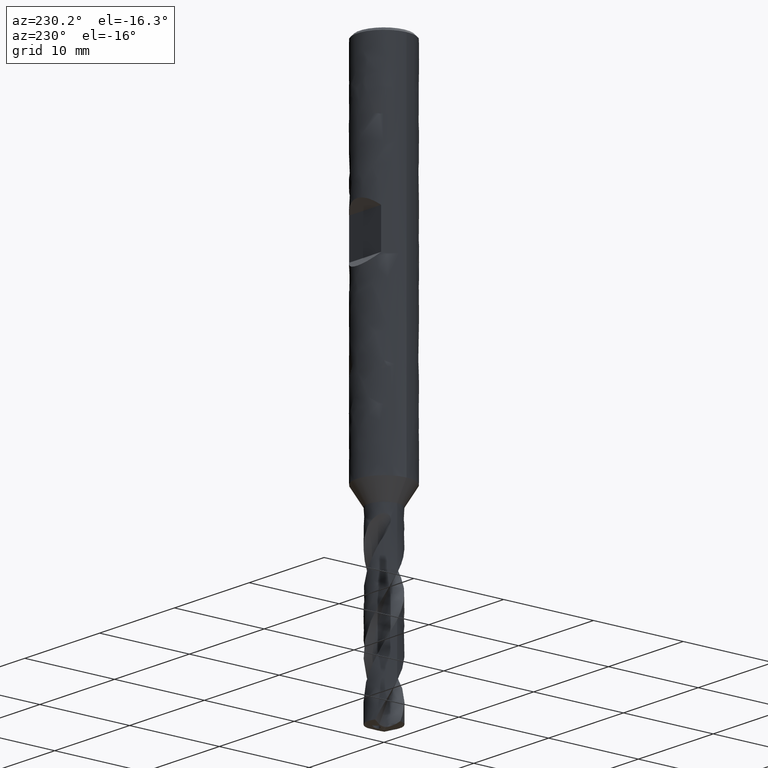
[diagram: clean part render]
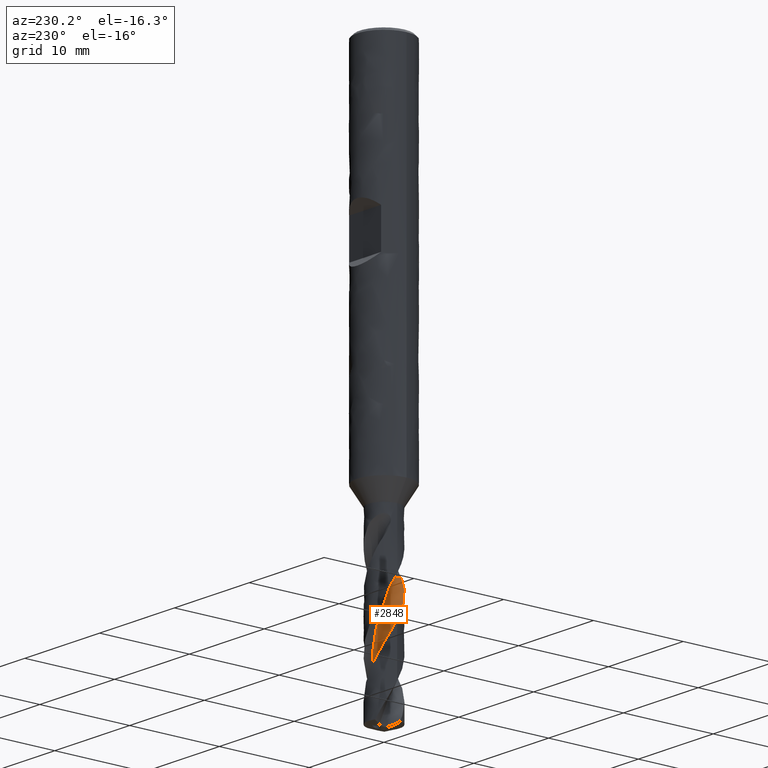
[diagram: same view with one face highlighted and labeled with its STEP entity id]
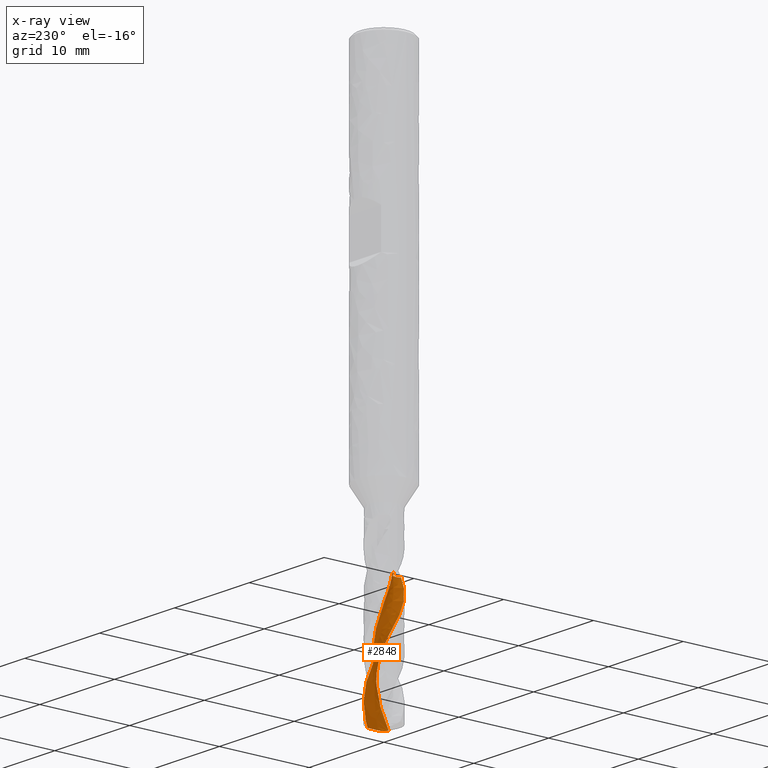
[diagram: x-ray of the same camera — body ghosted, the highlighted face saturated]
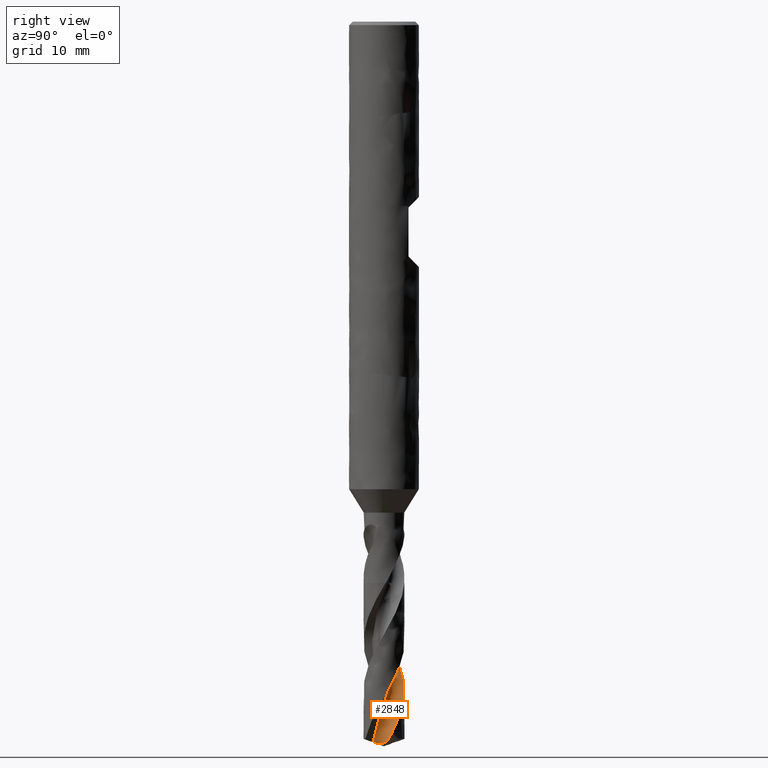
[diagram: same view with one face highlighted and labeled with its STEP entity id]
A machine part, auxiliary view. The second image highlights one B-rep face of the part: STEP entity #2848.
The next image is the same camera in x-ray: the body ghosted, the highlighted face saturated — about 0% of this face is hidden behind the body in this view.
A second angle (right view) of the same face is appended — the face is thin or edge-on in the first view.
In plain terms, the highlighted face is a freeform B-spline surface patch.
Its self-contained STEP definition (entity closure, byte-faithful):
#1710 = VERTEX_POINT('', #1711);
#1711 = CARTESIAN_POINT('', (-1.02463457413671, -0.229073927683657, -48.));
#1717 = EDGE_CURVE('', #1710, #1718, #1720, .T.);
#1718 = VERTEX_POINT('', #1719);
#1719 = CARTESIAN_POINT('', (-0.209315928972216, -1.73743685676138, -48.));
#1720 = B_SPLINE_CURVE_WITH_KNOTS('', 3, (#1721, #1722, #1723, #1724, #1725, #1726, #1727, #1728, #1729, #1730, #1731, #1732, #1733, #1734, #1735, #1736, #1737, #1738, #1739, #1740, #1741, #1742, #1743, #1744, #1745, #1746, #1747, #1748, #1749, #1750, #1751, #1752, #1753, #1754, #1755, #1756, #1757, #1758, #1759, #1760, #1761, #1762, #1763, #1764, #1765, #1766, #1767, #1768, #1769, #1770, #1771, #1772), .UNSPECIFIED., .F., .U., (4, 3, 3, 3, 3, 3, 3, 3, 3, 3, 3, 3, 3, 3, 3, 3, 3, 4), (0., 0.13238223961538, 0.264489129459112, 0.396329541998018, 0.527909895141712, 0.659234382537287, 0.790305122709238, 0.921122238344768, 1.00833954413342, 1.04734196641181, 1.17964447026306, 1.31167442705309, 1.44343997904716, 1.57494688894051, 1.70619874545669, 1.83719709162444, 1.96794148542349, 2.00282853897093), .UNSPECIFIED.);
#1721 = CARTESIAN_POINT('', (-1.02463457413671, -0.229073927683655, -48.));
#1722 = CARTESIAN_POINT('', (-0.980840436519577, -0.234487069705403, -48.));
#1723 = CARTESIAN_POINT('', (-0.937301769085219, -0.24267663320288, -48.));
#1724 = CARTESIAN_POINT('', (-0.894533881379576, -0.253545689158824, -48.));
#1725 = CARTESIAN_POINT('', (-0.851854949172402, -0.264392137912441, -48.));
#1726 = CARTESIAN_POINT('', (-0.809775730986182, -0.277949557964906, -48.));
#1727 = CARTESIAN_POINT('', (-0.76879219925814, -0.29405815293796, -48.));
#1728 = CARTESIAN_POINT('', (-0.727891336807151, -0.310134254715708, -48.));
#1729 = CARTESIAN_POINT('', (-0.687921521844684, -0.328814178372795, -48.));
#1730 = CARTESIAN_POINT('', (-0.649351970942264, -0.349878635184896, -48.));
#1731 = CARTESIAN_POINT('', (-0.61085849970228, -0.37090154168785, -48.));
#1732 = CARTESIAN_POINT('', (-0.573609571840415, -0.394381566705054, -48.));
#1733 = CARTESIAN_POINT('', (-0.538040744348666, -0.420044154976654, -48.));
#1734 = CARTESIAN_POINT('', (-0.502541082537343, -0.445656840833571, -48.));
#1735 = CARTESIAN_POINT('', (-0.468577006149005, -0.473543115206731, -48.));
#1736 = CARTESIAN_POINT('', (-0.43654412338344, -0.5033781631747, -48.));
#1737 = CARTESIAN_POINT('', (-0.404573135053769, -0.533155563397463, -48.));
#1738 = CARTESIAN_POINT('', (-0.374402086367705, -0.564989461779883, -48.));
#1739 = CARTESIAN_POINT('', (-0.346381052114439, -0.598510489481609, -48.));
#1740 = CARTESIAN_POINT('', (-0.31841423912988, -0.631966653315929, -48.));
#1741 = CARTESIAN_POINT('', (-0.292481245161039, -0.667232418184141, -48.));
#1742 = CARTESIAN_POINT('', (-0.268881810821114, -0.703900172763031, -48.));
#1743 = CARTESIAN_POINT('', (-0.253147791069455, -0.72834699494034, -48.));
#1744 = CARTESIAN_POINT('', (-0.238415169574571, -0.753467970903062, -48.));
#1745 = CARTESIAN_POINT('', (-0.224759759827934, -0.779133829095726, -48.));
#1746 = CARTESIAN_POINT('', (-0.218653241717715, -0.790611260441673, -48.));
#1747 = CARTESIAN_POINT('', (-0.212758457184175, -0.802203872072275, -48.));
#1748 = CARTESIAN_POINT('', (-0.207081478613279, -0.813899722107092, -48.));
#1749 = CARTESIAN_POINT('', (-0.187824252129282, -0.853573930883921, -48.));
#1750 = CARTESIAN_POINT('', (-0.171033120335392, -0.894541725115934, -48.));
#1751 = CARTESIAN_POINT('', (-0.156906578998959, -0.936318805480571, -48.));
#1752 = CARTESIAN_POINT('', (-0.142809138754452, -0.97800982382712, -48.));
#1753 = CARTESIAN_POINT('', (-0.131309900642762, -1.02067055713143, -48.));
#1754 = CARTESIAN_POINT('', (-0.122544244648893, -1.06379876260322, -48.));
#1755 = CARTESIAN_POINT('', (-0.113796142864241, -1.10684059900661, -48.));
#1756 = CARTESIAN_POINT('', (-0.107736416082395, -1.1505164296454, -48.));
#1757 = CARTESIAN_POINT('', (-0.10443612056557, -1.19431411240731, -48.));
#1758 = CARTESIAN_POINT('', (-0.101142303186259, -1.23802582486435, -48.));
#1759 = CARTESIAN_POINT('', (-0.100584216260085, -1.2820292583047, -48.));
#1760 = CARTESIAN_POINT('', (-0.102768378314935, -1.32581044690178, -48.));
#1761 = CARTESIAN_POINT('', (-0.104948304258475, -1.36950672330667, -48.));
#1762 = CARTESIAN_POINT('', (-0.109868273691704, -1.41315124799675, -48.));
#1763 = CARTESIAN_POINT('', (-0.117471042774582, -1.45623621696557, -48.));
#1764 = CARTESIAN_POINT('', (-0.125059127260301, -1.49923796817438, -48.));
#1765 = CARTESIAN_POINT('', (-0.135348961229887, -1.54184862088008, -48.));
#1766 = CARTESIAN_POINT('', (-0.14822128317172, -1.58357430794468, -48.));
#1767 = CARTESIAN_POINT('', (-0.161068650930974, -1.62521910591888, -48.));
#1768 = CARTESIAN_POINT('', (-0.176537954614612, -1.66614279993521, -48.));
#1769 = CARTESIAN_POINT('', (-0.19445059395523, -1.70587290701418, -48.));
#1770 = CARTESIAN_POINT('', (-0.199230295705293, -1.71647425161363, -48.));
#1771 = CARTESIAN_POINT('', (-0.204186802137414, -1.72699844392431, -48.));
#1772 = CARTESIAN_POINT('', (-0.209315961483917, -1.73743684078596, -48.));
#2772 = EDGE_CURVE('', #1718, #2773, #2775, .T.);
#2773 = VERTEX_POINT('', #2774);
#2774 = CARTESIAN_POINT('', (-0.812285113587229, -1.55006222270094, -49.1011981970313));
#2775 = B_SPLINE_CURVE_WITH_KNOTS('', 3, (#2776, #2777, #2778, #2779, #2780, #2781, #2782, #2783, #2784, #2785, #2786, #2787, #2788), .UNSPECIFIED., .F., .U., (4, 3, 3, 3, 4), (1.81740518934498, 2.10734334509191, 2.40334929903333, 2.84747218702439, 3.08838515466524), .UNSPECIFIED.);
#2776 = CARTESIAN_POINT('', (-0.209315928972216, -1.73743685676138, -48.));
#2777 = CARTESIAN_POINT('', (-0.25726248407179, -1.73166045023538, -48.083716123998));
#2778 = CARTESIAN_POINT('', (-0.304984864555676, -1.72389545232375, -48.1674467474083));
#2779 = CARTESIAN_POINT('', (-0.352279973630268, -1.71417584284074, -48.2511674808021));
#2780 = CARTESIAN_POINT('', (-0.400564870257008, -1.70425282229332, -48.3366403137553));
#2781 = CARTESIAN_POINT('', (-0.448430600627395, -1.69228800745389, -48.4221382165554));
#2782 = CARTESIAN_POINT('', (-0.495694141142561, -1.67832872776365, -48.50761803289));
#2783 = CARTESIAN_POINT('', (-0.56660764754599, -1.65738443415146, -48.6358706656156));
#2784 = CARTESIAN_POINT('', (-0.636220878240862, -1.63192758756203, -48.7641906230167));
#2785 = CARTESIAN_POINT('', (-0.703900569210545, -1.60219349289187, -48.8924539056458));
#2786 = CARTESIAN_POINT('', (-0.740613190067072, -1.58606433319127, -48.962029892142));
#2787 = CARTESIAN_POINT('', (-0.776773159889846, -1.56867168941804, -49.0316182206529));
#2788 = CARTESIAN_POINT('', (-0.812285113587229, -1.55006222270094, -49.1011981970313));
#2848 = ADVANCED_FACE('', (#2849), #3053, .T.);
#2849 = FACE_OUTER_BOUND('', #2850, .T.);
#2850 = EDGE_LOOP('', (#2851, #2852, #2903, #2996, #3008, #3052));
#2851 = ORIENTED_EDGE('', *, *, #1717, .F.);
#2852 = ORIENTED_EDGE('', *, *, #2853, .F.);
#2853 = EDGE_CURVE('', #2854, #1710, #2856, .T.);
#2854 = VERTEX_POINT('', #2855);
#2855 = CARTESIAN_POINT('', (0.487243639027194, -0.927286770692682, -61.6187392913308));
#2856 = (
   BOUNDED_CURVE ()
   B_SPLINE_CURVE (3, (#2857, #2858, #2859, #2860, #2861, #2862, #2863, #2864, #2865, #2866, #2867, #2868, #2869, #2870, #2871, #2872, #2873, #2874, #2875, #2876, #2877, #2878, #2879, #2880, #2881, #2882, #2883, #2884, #2885, #2886, #2887, #2888, #2889, #2890, #2891, #2892, #2893, #2894, #2895, #2896, #2897, #2898, #2899, #2900, #2901, #2902), .UNSPECIFIED., .F., .U.)
   B_SPLINE_CURVE_WITH_KNOTS ((4, 1, 1, 1, 1, 1, 1, 1, 1, 1, 1, 1, 1, 1, 1, 1, 1, 1, 1, 1, 1, 1, 1, 1, 1, 1, 1, 1, 1, 1, 1, 1, 1, 1, 1, 1, 1, 1, 1, 1, 1, 1, 1, 4), (0.431260708669204, 0.645762711864407, 0.96864406779661, 1.29152542372881, 1.61440677966102, 1.93728813559322, 2.26016949152542, 2.58305084745763, 2.90593220338983, 3.22881355932203, 3.55169491525424, 3.87457627118644, 4.19745762711864, 4.52033898305085, 4.84322033898305, 5.16610169491525, 5.48898305084746, 5.81186440677966, 6.13474576271186, 6.45762711864407, 6.78050847457627, 7.10338983050848, 7.42627118644068, 7.74915254237288, 8.07203389830508, 8.39491525423729, 8.71779661016949, 9.0406779661017, 9.3635593220339, 9.6864406779661, 10.0093220338983, 10.3322033898305, 10.6550847457627, 10.9779661016949, 11.3008474576271, 11.6237288135593, 11.9466101694915, 12.2694915254237, 12.5923728813559, 12.9152542372881, 13.2381355932203, 13.5610169491525, 13.8838983050847, 14.05), .UNSPECIFIED.)
   CURVE ()
   GEOMETRIC_REPRESENTATION_ITEM ()
   RATIONAL_B_SPLINE_CURVE ((1., 1., 1., 1., 1., 1., 1., 1., 1., 1., 1., 1., 1., 1., 1., 1., 1., 1., 1., 1., 1., 1., 1., 1., 1., 1., 1., 1., 1., 1., 1., 1., 1., 1., 1., 1., 1., 1., 1., 1., 1., 1., 1., 1., 1., 1.))
   REPRESENTATION_ITEM ('')
);
#2857 = CARTESIAN_POINT('', (0.487243639027196, -0.92728677069268, -61.6187392913308));
#2858 = CARTESIAN_POINT('', (0.50861685387637, -0.915366287116405, -61.5472386235991));
#2859 = CARTESIAN_POINT('', (0.561081623239424, -0.883675498813258, -61.3681108372233));
#2860 = CARTESIAN_POINT('', (0.640239035428583, -0.825925442326044, -61.0813559322034));
#2861 = CARTESIAN_POINT('', (0.721914039866376, -0.752155655832741, -60.7584745762712));
#2862 = CARTESIAN_POINT('', (0.795293259047024, -0.670473926352725, -60.435593220339));
#2863 = CARTESIAN_POINT('', (0.85962821610745, -0.581793136272906, -60.1127118644068));
#2864 = CARTESIAN_POINT('', (0.914268374447866, -0.487094576559893, -59.7898305084746));
#2865 = CARTESIAN_POINT('', (0.958667692527754, -0.387418258562093, -59.4669491525424));
#2866 = CARTESIAN_POINT('', (0.992389577687685, -0.283851848878509, -59.1440677966102));
#2867 = CARTESIAN_POINT('', (1.0151108723026, -0.177519419032153, -58.821186440678));
#2868 = CARTESIAN_POINT('', (1.02662466036024, -0.0695698299455169, -58.4983050847458));
#2869 = CARTESIAN_POINT('', (1.02684192252971, 0.0388350584473529, -58.1754237288136));
#2870 = CARTESIAN_POINT('', (1.01579201710871, 0.146532259828787, -57.8525423728814));
#2871 = CARTESIAN_POINT('', (0.993621991453879, 0.252369497296868, -57.5296610169491));
#2872 = CARTESIAN_POINT('', (0.960594734748406, 0.35521689133508, -57.206779661017));
#2873 = CARTESIAN_POINT('', (0.917085994624832, 0.453978388994733, -56.8838983050847));
#2874 = CARTESIAN_POINT('', (0.863580290066832, 0.547602826720867, -56.5610169491525));
#2875 = CARTESIAN_POINT('', (0.800665762982292, 0.635094522901481, -56.2381355932203));
#2876 = CARTESIAN_POINT('', (0.729028020286785, 0.715523300911112, -55.9152542372881));
#2877 = CARTESIAN_POINT('', (0.649443027326299, 0.788033848891189, -55.5923728813559));
#2878 = CARTESIAN_POINT('', (0.562769121896414, 0.851854328772238, -55.2694915254237));
#2879 = CARTESIAN_POINT('', (0.469938225928608, 0.906304154028075, -54.9466101694915));
#2880 = CARTESIAN_POINT('', (0.371946339051606, 0.9508008633065, -54.6237288135593));
#2881 = CARTESIAN_POINT('', (0.269843404643745, 0.984866025341791, -54.3008474576271));
#2882 = CARTESIAN_POINT('', (0.164722644622381, 1.00813011935591, -53.9779661016949));
#2883 = CARTESIAN_POINT('', (0.0577094640252418, 1.02033634442889, -53.6550847457627));
#2884 = CARTESIAN_POINT('', (-0.0500499696109092, 1.02134332099159, -53.3322033898305));
#2885 = CARTESIAN_POINT('', (-0.157400364009266, 1.011126657591, -53.0093220338983));
#2886 = CARTESIAN_POINT('', (-0.263189046839689, 0.989779366322375, -52.6864406779661));
#2887 = CARTESIAN_POINT('', (-0.366277705918226, 0.95751112073159, -52.3635593220339));
#2888 = CARTESIAN_POINT('', (-0.46555401323233, 0.914646360495182, -52.0406779661017));
#2889 = CARTESIAN_POINT('', (-0.559943021847237, 0.861621257659712, -51.7177966101695));
#2890 = CARTESIAN_POINT('', (-0.648418226226129, 0.798979569743651, -51.3949152542373));
#2891 = CARTESIAN_POINT('', (-0.730012179747691, 0.727367414892207, -51.0720338983051));
#2892 = CARTESIAN_POINT('', (-0.803826564313087, 0.647527015679624, -50.7491525423729));
#2893 = CARTESIAN_POINT('', (-0.869041620446976, 0.560289462653749, -50.4262711864407));
#2894 = CARTESIAN_POINT('', (-0.924924817821687, 0.466566577353152, -50.1033898305085));
#2895 = CARTESIAN_POINT('', (-0.970838778530815, 0.3673418910768, -49.7805084745763));
#2896 = CARTESIAN_POINT('', (-1.0062480014539, 0.263661033520008, -49.4576271186441));
#2897 = CARTESIAN_POINT('', (-1.03072570160029, 0.156620826788788, -49.1347457627119));
#2898 = CARTESIAN_POINT('', (-1.04395552671633, 0.0473601423322898, -48.8118644067797));
#2899 = CARTESIAN_POINT('', (-1.04574740517403, -0.0629584299737382, -48.4889830508475));
#2900 = CARTESIAN_POINT('', (-1.0375738241234, -0.155302181909013, -48.2183615819209));
#2901 = CARTESIAN_POINT('', (-1.02829443739041, -0.210434219078878, -48.0553672316384));
#2902 = CARTESIAN_POINT('', (-1.02463457413671, -0.229073927683657, -48.));
#2903 = ORIENTED_EDGE('', *, *, #2904, .T.);
#2904 = EDGE_CURVE('', #2854, #2905, #2907, .T.);
#2905 = VERTEX_POINT('', #2906);
#2906 = CARTESIAN_POINT('', (1.70552427638683, 0.392029262498567, -61.3630520900341));
#2907 = B_SPLINE_CURVE_WITH_KNOTS('', 3, (#2908, #2909, #2910, #2911, #2912, #2913, #2914, #2915, #2916, #2917, #2918, #2919, #2920, #2921, #2922, #2923, #2924, #2925, #2926, #2927, #2928, #2929, #2930, #2931, #2932, #2933, #2934, #2935, #2936, #2937, #2938, #2939, #2940, #2941, #2942, #2943, #2944, #2945, #2946, #2947, #2948, #2949, #2950, #2951, #2952, #2953, #2954, #2955, #2956, #2957, #2958, #2959, #2960, #2961, #2962, #2963, #2964, #2965, #2966, #2967, #2968, #2969, #2970, #2971, #2972, #2973, #2974, #2975, #2976, #2977, #2978, #2979, #2980, #2981, #2982, #2983, #2984, #2985, #2986, #2987, #2988, #2989, #2990, #2991, #2992, #2993, #2994, #2995), .UNSPECIFIED., .F., .U., (4, 3, 3, 3, 3, 3, 3, 3, 3, 3, 3, 3, 3, 3, 3, 3, 3, 3, 3, 3, 3, 3, 3, 3, 3, 3, 3, 3, 3, 4), (0., 0.0877311610625787, 0.175312600356847, 0.262675175793645, 0.320842775295293, 0.378925712586217, 0.436934552929452, 0.494895774770264, 0.552850406203621, 0.610845513892065, 0.668920395289342, 0.727094355757456, 0.78536308983274, 0.843704573864338, 0.902089247584361, 0.960488645562537, 1.01887998889773, 1.05794543970554, 1.08396254001976, 1.17259291964183, 1.26088101081249, 1.34890026617435, 1.43670750959547, 1.5243448397674, 1.61184277281067, 1.69922311932603, 1.78650123745844, 1.87368768591508, 2.00398073426889, 2.08791963544451), .UNSPECIFIED.);
#2908 = CARTESIAN_POINT('', (0.487243639027197, -0.92728677069268, -61.6187392913308));
#2909 = CARTESIAN_POINT('', (0.480309314589125, -0.900609614509791, -61.6285086138629));
#2910 = CARTESIAN_POINT('', (0.474801027301083, -0.873475488132806, -61.6381654876003));
#2911 = CARTESIAN_POINT('', (0.470810218983013, -0.846079458837178, -61.6475849466058));
#2912 = CARTESIAN_POINT('', (0.466826221367903, -0.818730183532962, -61.6569883303873));
#2913 = CARTESIAN_POINT('', (0.464344076225092, -0.791042843946069, -61.6661819834507));
#2914 = CARTESIAN_POINT('', (0.463428543325975, -0.763230141347145, -61.6750077466959));
#2915 = CARTESIAN_POINT('', (0.462515298321002, -0.735486942006291, -61.6838114545764));
#2916 = CARTESIAN_POINT('', (0.463159169726936, -0.70753497508621, -61.6922757684332));
#2917 = CARTESIAN_POINT('', (0.465386797312162, -0.679603306190866, -61.7002057083203));
#2918 = CARTESIAN_POINT('', (0.46686999247403, -0.661005890517234, -61.7054856072371));
#2919 = CARTESIAN_POINT('', (0.469056618965983, -0.642384396550874, -61.7105373791955));
#2920 = CARTESIAN_POINT('', (0.471941589392504, -0.623810697909176, -61.7152950818558));
#2921 = CARTESIAN_POINT('', (0.474822360780793, -0.605264033052641, -61.7200458597396));
#2922 = CARTESIAN_POINT('', (0.47840404337637, -0.586736802819571, -61.724510357248));
#2923 = CARTESIAN_POINT('', (0.482668121645013, -0.568303645326128, -61.7286193538329));
#2924 = CARTESIAN_POINT('', (0.486926760189028, -0.54989400318453, -61.7327231085322));
#2925 = CARTESIAN_POINT('', (0.491872992634583, -0.531549011844346, -61.7364782977041));
#2926 = CARTESIAN_POINT('', (0.497472342305196, -0.513345033303854, -61.7398180847072));
#2927 = CARTESIAN_POINT('', (0.50306709556181, -0.495155998109775, -61.7431551301342));
#2928 = CARTESIAN_POINT('', (0.509323088341123, -0.477078113699884, -61.7460822936237));
#2929 = CARTESIAN_POINT('', (0.516188611981111, -0.4591871629997, -61.7485433108256));
#2930 = CARTESIAN_POINT('', (0.523053354985414, -0.441298246567448, -61.7510040482006));
#2931 = CARTESIAN_POINT('', (0.530538610082675, -0.423566943062331, -61.7530022293762));
#2932 = CARTESIAN_POINT('', (0.538576888388701, -0.406064587901011, -61.7545011962691));
#2933 = CARTESIAN_POINT('', (0.546620780731001, -0.388550008871216, -61.7560012100596));
#2934 = CARTESIAN_POINT('', (0.555230931257016, -0.371236806242611, -61.7570034497094));
#2935 = CARTESIAN_POINT('', (0.564329111862413, -0.354187063542627, -61.7574975220857));
#2936 = CARTESIAN_POINT('', (0.573439807240857, -0.337113868498748, -61.7579922740709));
#2937 = CARTESIAN_POINT('', (0.583052926872677, -0.32027943553943, -61.7579783839124));
#2938 = CARTESIAN_POINT('', (0.593087285006134, -0.303732542235635, -61.7574728963712));
#2939 = CARTESIAN_POINT('', (0.603138762328756, -0.287157418985015, -61.7569665464393));
#2940 = CARTESIAN_POINT('', (0.61362576610141, -0.270848733999871, -61.7559668042112));
#2941 = CARTESIAN_POINT('', (0.624472140352163, -0.254840409660223, -61.7545131829251));
#2942 = CARTESIAN_POINT('', (0.635336184880205, -0.238806005496713, -61.7530571934845));
#2943 = CARTESIAN_POINT('', (0.646572741007247, -0.223054632473862, -61.751144882338));
#2944 = CARTESIAN_POINT('', (0.658116265135295, -0.207606796043717, -61.748829523625));
#2945 = CARTESIAN_POINT('', (0.669674201638853, -0.192139672607543, -61.7465112741293));
#2946 = CARTESIAN_POINT('', (0.681550520932167, -0.176962231571184, -61.7437873958546));
#2947 = CARTESIAN_POINT('', (0.693692427700871, -0.162084967389976, -61.740716045201));
#2948 = CARTESIAN_POINT('', (0.705843323016557, -0.147196689700708, -61.7376424208536));
#2949 = CARTESIAN_POINT('', (0.71826937570586, -0.132597639261277, -61.7342188792362));
#2950 = CARTESIAN_POINT('', (0.730929882859308, -0.118292134248622, -61.7305018480142));
#2951 = CARTESIAN_POINT('', (0.743593582915341, -0.103983021474968, -61.7267838793797));
#2952 = CARTESIAN_POINT('', (0.756499654798458, -0.0899587648788013, -61.7227702050246));
#2953 = CARTESIAN_POINT('', (0.769617378534001, -0.0762206973021757, -61.7185117873015));
#2954 = CARTESIAN_POINT('', (0.782733293028609, -0.0624845245264125, -61.7142539569139));
#2955 = CARTESIAN_POINT('', (0.796067454057967, -0.0490275275582629, -61.7097493875706));
#2956 = CARTESIAN_POINT('', (0.809596675791571, -0.0358502432229246, -61.7050421471907));
#2957 = CARTESIAN_POINT('', (0.818648105608286, -0.0270342694230449, -61.7018928709967));
#2958 = CARTESIAN_POINT('', (0.827789128124409, -0.01834137790308, -61.6986519963066));
#2959 = CARTESIAN_POINT('', (0.837014178747244, -0.00977183345405493, -61.6953309926548));
#2960 = CARTESIAN_POINT('', (0.843157946769755, -0.00406462432253222, -61.6931192458717));
#2961 = CARTESIAN_POINT('', (0.849339587624402, 0.00158841803337424, -61.6908717219636));
#2962 = CARTESIAN_POINT('', (0.855557665194485, 0.00718716730398703, -61.6885914887836));
#2963 = CARTESIAN_POINT('', (0.876740293884845, 0.0262599796954581, -61.6808236003592));
#2964 = CARTESIAN_POINT('', (0.89835579837475, 0.0447128885836549, -61.6726741826998));
#2965 = CARTESIAN_POINT('', (0.920357700507762, 0.0625364019526364, -61.6642447879977));
#2966 = CARTESIAN_POINT('', (0.942274631809768, 0.0802910813302076, -61.6558479474207));
#2967 = CARTESIAN_POINT('', (0.964591166779999, 0.0974340002994029, -61.6471667723134));
#2968 = CARTESIAN_POINT('', (0.987270531956956, 0.113948044003403, -61.6382774413552));
#2969 = CARTESIAN_POINT('', (1.00988083883398, 0.130411802711581, -61.6294151782658));
#2970 = CARTESIAN_POINT('', (1.03286696454797, 0.146261343305759, -61.620339779927));
#2971 = CARTESIAN_POINT('', (1.05619614032758, 0.161472277724404, -61.6111095000561));
#2972 = CARTESIAN_POINT('', (1.07946912313199, 0.176646573572166, -61.6019014531562));
#2973 = CARTESIAN_POINT('', (1.10309854521929, 0.191194978033768, -61.5925330944767));
#2974 = CARTESIAN_POINT('', (1.12705222406719, 0.205086617209772, -61.5830503342532));
#2975 = CARTESIAN_POINT('', (1.15095955084613, 0.218951375077846, -61.5735859238439));
#2976 = CARTESIAN_POINT('', (1.17520534160452, 0.232170749775051, -61.5640012708077));
#2977 = CARTESIAN_POINT('', (1.1997557646951, 0.244708150033322, -61.5543339459611));
#2978 = CARTESIAN_POINT('', (1.22426713754898, 0.257225608132315, -61.5446819980928));
#2979 = CARTESIAN_POINT('', (1.24909849170727, 0.269071490417384, -61.5349411027771));
#2980 = CARTESIAN_POINT('', (1.27421267932184, 0.28020413775848, -61.525143348048));
#2981 = CARTESIAN_POINT('', (1.29929311653774, 0.291321824182196, -61.5153587603037));
#2982 = CARTESIAN_POINT('', (1.32467316668346, 0.301735872142442, -61.5055105474417));
#2983 = CARTESIAN_POINT('', (1.35031093005492, 0.311400116058161, -61.495627384055));
#2984 = CARTESIAN_POINT('', (1.37591869918631, 0.321053053540941, -61.4857557832204));
#2985 = CARTESIAN_POINT('', (1.40180267660326, 0.329965043354151, -61.47584190293));
#2986 = CARTESIAN_POINT('', (1.42791482108031, 0.338085963466252, -61.4659125468425));
#2987 = CARTESIAN_POINT('', (1.45399953953274, 0.34619835403934, -61.4559936197247));
#2988 = CARTESIAN_POINT('', (1.48033293320249, 0.35352775652159, -61.4460512400762));
#2989 = CARTESIAN_POINT('', (1.50685937500956, 0.360020726165743, -61.4361115336934));
#2990 = CARTESIAN_POINT('', (1.54650098246351, 0.369723940630616, -61.4212574518116));
#2991 = CARTESIAN_POINT('', (1.58664221238939, 0.377574309106755, -61.4063844318136));
#2992 = CARTESIAN_POINT('', (1.62705745912453, 0.383382949328576, -61.3915817060123));
#2993 = CARTESIAN_POINT('', (1.6530942388649, 0.387125059009057, -61.3820453220389));
#2994 = CARTESIAN_POINT('', (1.67927419913516, 0.390024359614045, -61.3725269890891));
#2995 = CARTESIAN_POINT('', (1.70552427638683, 0.392029262498567, -61.3630520900341));
#2996 = ORIENTED_EDGE('', *, *, #2997, .F.);
#2997 = EDGE_CURVE('', #2998, #2905, #3000, .T.);
#2998 = VERTEX_POINT('', #2999);
#2999 = CARTESIAN_POINT('', (1.6047200871874, 0.698121366079893, -60.793767295068));
#3000 = B_SPLINE_CURVE_WITH_KNOTS('', 3, (#3001, #3002, #3003, #3004, #3005, #3006, #3007), .UNSPECIFIED., .F., .U., (4, 3, 4), (0., 0.442607897854982, 0.654318366333914), .UNSPECIFIED.);
#3001 = CARTESIAN_POINT('', (1.6047200871874, 0.698121366079905, -60.793767295068));
#3002 = CARTESIAN_POINT('', (1.63375197368678, 0.631387910124953, -60.9221053512785));
#3003 = CARTESIAN_POINT('', (1.65862203584004, 0.56281963357449, -61.0505107746947));
#3004 = CARTESIAN_POINT('', (1.67911815080753, 0.493013423375785, -61.1788613241218));
#3005 = CARTESIAN_POINT('', (1.68892195711735, 0.459623360668976, -61.2402546139397));
#3006 = CARTESIAN_POINT('', (1.69772968556684, 0.425939649144899, -61.3016560236142));
#3007 = CARTESIAN_POINT('', (1.70552427638683, 0.392029262498563, -61.3630520900341));
#3008 = ORIENTED_EDGE('', *, *, #3009, .T.);
#3009 = EDGE_CURVE('', #2998, #2773, #3010, .T.);
#3010 = (
   BOUNDED_CURVE ()
   B_SPLINE_CURVE (3, (#3011, #3012, #3013, #3014, #3015, #3016, #3017, #3018, #3019, #3020, #3021, #3022, #3023, #3024, #3025, #3026, #3027, #3028, #3029, #3030, #3031, #3032, #3033, #3034, #3035, #3036, #3037, #3038, #3039, #3040, #3041, #3042, #3043, #3044, #3045, #3046, #3047, #3048, #3049, #3050, #3051), .UNSPECIFIED., .F., .U.)
   B_SPLINE_CURVE_WITH_KNOTS ((4, 1, 1, 1, 1, 1, 1, 1, 1, 1, 1, 1, 1, 1, 1, 1, 1, 1, 1, 1, 1, 1, 1, 1, 1, 1, 1, 1, 1, 1, 1, 1, 1, 1, 1, 1, 1, 1, 4), (1.25623270493203, 1.29152542372881, 1.61440677966102, 1.93728813559322, 2.26016949152542, 2.58305084745763, 2.90593220338983, 3.22881355932203, 3.55169491525424, 3.87457627118644, 4.19745762711864, 4.52033898305085, 4.84322033898305, 5.16610169491525, 5.48898305084746, 5.81186440677966, 6.13474576271186, 6.45762711864407, 6.78050847457627, 7.10338983050848, 7.42627118644068, 7.74915254237288, 8.07203389830508, 8.39491525423729, 8.71779661016949, 9.0406779661017, 9.3635593220339, 9.6864406779661, 10.0093220338983, 10.3322033898305, 10.6550847457627, 10.9779661016949, 11.3008474576271, 11.6237288135593, 11.9466101694915, 12.2694915254237, 12.5923728813559, 12.9152542372881, 12.9488018029687), .UNSPECIFIED.)
   CURVE ()
   GEOMETRIC_REPRESENTATION_ITEM ()
   RATIONAL_B_SPLINE_CURVE ((1., 1., 1., 1., 1., 1., 1., 1., 1., 1., 1., 1., 1., 1., 1., 1., 1., 1., 1., 1., 1., 1., 1., 1., 1., 1., 1., 1., 1., 1., 1., 1., 1., 1., 1., 1., 1., 1., 1., 1., 1.))
   REPRESENTATION_ITEM ('')
);
#3011 = CARTESIAN_POINT('', (1.60472008718739, 0.698121366079927, -60.793767295068));
#3012 = CARTESIAN_POINT('', (1.60190172488819, 0.704228916120258, -60.782003055469));
#3013 = CARTESIAN_POINT('', (1.57294930417022, 0.766041334976192, -60.662611697226));
#3014 = CARTESIAN_POINT('', (1.51118302373195, 0.880197347562986, -60.435593220339));
#3015 = CARTESIAN_POINT('', (1.40713996762484, 1.03219436922378, -60.1127118644068));
#3016 = CARTESIAN_POINT('', (1.28808809221615, 1.17224308539216, -59.7898305084746));
#3017 = CARTESIAN_POINT('', (1.15536541185643, 1.29889099026408, -59.4669491525424));
#3018 = CARTESIAN_POINT('', (1.01044726863472, 1.41083193345322, -59.1440677966102));
#3019 = CARTESIAN_POINT('', (0.854930772632176, 1.50691879141723, -58.821186440678));
#3020 = CARTESIAN_POINT('', (0.690517997111011, 1.5861744776588, -58.4983050847458));
#3021 = CARTESIAN_POINT('', (0.518998245869897, 1.64780122853963, -58.1754237288136));
#3022 = CARTESIAN_POINT('', (0.342229526638147, 1.69118807654381, -57.8525423728814));
#3023 = CARTESIAN_POINT('', (0.162119421638643, 1.71591645097063, -57.5296610169491));
#3024 = CARTESIAN_POINT('', (-0.0193944627912088, 1.72176386049166, -57.206779661017));
#3025 = CARTESIAN_POINT('', (-0.200364279106525, 1.70870563050028, -56.8838983050847));
#3026 = CARTESIAN_POINT('', (-0.378851765340841, 1.67691468578147, -56.5610169491525));
#3027 = CARTESIAN_POINT('', (-0.552947927264255, 1.62675938687593, -56.2381355932203));
#3028 = CARTESIAN_POINT('', (-0.720792389494524, 1.55879944612253, -55.9152542372881));
#3029 = CARTESIAN_POINT('', (-0.880592232722973, 1.47377996668975, -55.5923728813559));
#3030 = CARTESIAN_POINT('', (-1.03064013936834, 1.3726236647923, -55.2694915254237));
#3031 = CARTESIAN_POINT('', (-1.1693316766144, 1.25642135160915, -54.9466101694915));
#3032 = CARTESIAN_POINT('', (-1.29518155387193, 1.12642076704731, -54.6237288135593));
#3033 = CARTESIAN_POINT('', (-1.40683870116284, 0.984013872311434, -54.3008474576271));
#3034 = CARTESIAN_POINT('', (-1.50310002567731, 0.830722722129698, -53.9779661016949));
#3035 = CARTESIAN_POINT('', (-1.58292271571983, 0.66818405034278, -53.6550847457627));
#3036 = CARTESIAN_POINT('', (-1.64543497434179, 0.498132714285845, -53.3322033898305));
#3037 = CARTESIAN_POINT('', (-1.68994507905738, 0.322384153889466, -53.0093220338983));
#3038 = CARTESIAN_POINT('', (-1.71594867904714, 0.142816030612663, -52.6864406779661));
#3039 = CARTESIAN_POINT('', (-1.72313425705332, -0.0386507808865461, -52.3635593220339));
#3040 = CARTESIAN_POINT('', (-1.71138669964904, -0.220071669068491, -52.0406779661017));
#3041 = CARTESIAN_POINT('', (-1.68078893656733, -0.399498045797152, -51.7177966101695));
#3042 = CARTESIAN_POINT('', (-1.63162162727026, -0.574997202964288, -51.3949152542373));
#3043 = CARTESIAN_POINT('', (-1.56436089043152, -0.744672077381389, -51.0720338983051));
#3044 = CARTESIAN_POINT('', (-1.47967409068844, -0.906680731176458, -50.7491525423729));
#3045 = CARTESIAN_POINT('', (-1.37841371178451, -1.05925537378384, -50.4262711864407));
#3046 = CARTESIAN_POINT('', (-1.2616093744652, -1.20072069034053, -50.1033898305085));
#3047 = CARTESIAN_POINT('', (-1.13045803187217, -1.32951148680245, -49.7805084745763));
#3048 = CARTESIAN_POINT('', (-0.986312552791643, -1.44418877038226, -49.4576271186441));
#3049 = CARTESIAN_POINT('', (-0.877159221402007, -1.51380541997293, -49.2311903594624));
#3050 = CARTESIAN_POINT('', (-0.817881823514189, -1.54697063217049, -49.1123807189248));
#3051 = CARTESIAN_POINT('', (-0.812285113587233, -1.55006222270094, -49.1011981970313));
#3052 = ORIENTED_EDGE('', *, *, #2772, .F.);
#3053 = (
   BOUNDED_SURFACE ()
   B_SPLINE_SURFACE (3, 2, ((#3054, #3055, #3056, #3057, #3058), (#3059, #3060, #3061, #3062, #3063), (#3064, #3065, #3066, #3067, #3068), (#3069, #3070, #3071, #3072, #3073), (#3074, #3075, #3076, #3077, #3078), (#3079, #3080, #3081, #3082, #3083), (#3084, #3085, #3086, #3087, #3088), (#3089, #3090, #3091, #3092, #3093), (#3094, #3095, #3096, #3097, #3098), (#3099, #3100, #3101, #3102, #3103), (#3104, #3105, #3106, #3107, #3108), (#3109, #3110, #3111, #3112, #3113), (#3114, #3115, #3116, #3117, #3118), (#3119, #3120, #3121, #3122, #3123), (#3124, #3125, #3126, #3127, #3128), (#3129, #3130, #3131, #3132, #3133), (#3134, #3135, #3136, #3137, #3138), (#3139, #3140, #3141, #3142, #3143), (#3144, #3145, #3146, #3147, #3148), (#3149, #3150, #3151, #3152, #3153), (#3154, #3155, #3156, #3157, #3158), (#3159, #3160, #3161, #3162, #3163), (#3164, #3165, #3166, #3167, #3168), (#3169, #3170, #3171, #3172, #3173), (#3174, #3175, #3176, #3177, #3178), (#3179, #3180, #3181, #3182, #3183), (#3184, #3185, #3186, #3187, #3188), (#3189, #3190, #3191, #3192, #3193), (#3194, #3195, #3196, #3197, #3198), (#3199, #3200, #3201, #3202, #3203), (#3204, #3205, #3206, #3207, #3208), (#3209, #3210, #3211, #3212, #3213), (#3214, #3215, #3216, #3217, #3218), (#3219, #3220, #3221, #3222, #3223), (#3224, #3225, #3226, #3227, #3228), (#3229, #3230, #3231, #3232, #3233), (#3234, #3235, #3236, #3237, #3238), (#3239, #3240, #3241, #3242, #3243), (#3244, #3245, #3246, #3247, #3248), (#3249, #3250, #3251, #3252, #3253), (#3254, #3255, #3256, #3257, #3258), (#3259, #3260, #3261, #3262, #3263), (#3264, #3265, #3266, #3267, #3268), (#3269, #3270, #3271, #3272, #3273), (#3274, #3275, #3276, #3277, #3278), (#3279, #3280, #3281, #3282, #3283)), .UNSPECIFIED., .F., .F., .U.)
   B_SPLINE_SURFACE_WITH_KNOTS ((4, 1, 1, 1, 1, 1, 1, 1, 1, 1, 1, 1, 1, 1, 1, 1, 1, 1, 1, 1, 1, 1, 1, 1, 1, 1, 1, 1, 1, 1, 1, 1, 1, 1, 1, 1, 1, 1, 1, 1, 1, 1, 1, 4), (3, 2, 3), (0.292007725929106, 0.645762711864407, 0.96864406779661, 1.29152542372881, 1.61440677966102, 1.93728813559322, 2.26016949152542, 2.58305084745763, 2.90593220338983, 3.22881355932203, 3.55169491525424, 3.87457627118644, 4.19745762711864, 4.52033898305085, 4.84322033898305, 5.16610169491525, 5.48898305084746, 5.81186440677966, 6.13474576271186, 6.45762711864407, 6.78050847457627, 7.10338983050848, 7.42627118644068, 7.74915254237288, 8.07203389830508, 8.39491525423729, 8.71779661016949, 9.0406779661017, 9.3635593220339, 9.6864406779661, 10.0093220338983, 10.3322033898305, 10.6550847457627, 10.9779661016949, 11.3008474576271, 11.6237288135593, 11.9466101694915, 12.2694915254237, 12.5923728813559, 12.9152542372881, 13.2381355932203, 13.5610169491525, 13.8838983050847, 14.0500000009586), (0., 0.5, 1.), .UNSPECIFIED.)
   GEOMETRIC_REPRESENTATION_ITEM ()
   RATIONAL_B_SPLINE_SURFACE (((1., 0.887010833178222, 1., 0.887010833178222, 1.), (1., 0.887010833178222, 1., 0.887010833178222, 1.), (1., 0.887010833178222, 1., 0.887010833178222, 1.), (1., 0.887010833178222, 1., 0.887010833178222, 1.), (1., 0.887010833178222, 1., 0.887010833178222, 1.), (1., 0.887010833178222, 1., 0.887010833178222, 1.), (1., 0.887010833178221, 1., 0.887010833178221, 1.), (1., 0.887010833178222, 1., 0.887010833178222, 1.), (1., 0.887010833178222, 1., 0.887010833178222, 1.), (1., 0.887010833178222, 1., 0.887010833178222, 1.), (1., 0.887010833178222, 1., 0.887010833178222, 1.), (1., 0.887010833178222, 1., 0.887010833178222, 1.), (1., 0.887010833178222, 1., 0.887010833178222, 1.), (1., 0.887010833178222, 1., 0.887010833178222, 1.), (1., 0.887010833178222, 1., 0.887010833178222, 1.), (1., 0.887010833178222, 1., 0.887010833178222, 1.), (1., 0.887010833178222, 1., 0.887010833178222, 1.), (1., 0.887010833178222, 1., 0.887010833178222, 1.), (1., 0.887010833178222, 1., 0.887010833178222, 1.), (1., 0.887010833178222, 1., 0.887010833178222, 1.), (1., 0.887010833178222, 1., 0.887010833178222, 1.), (1., 0.887010833178222, 1., 0.887010833178222, 1.), (1., 0.887010833178222, 1., 0.887010833178222, 1.), (1., 0.887010833178222, 1., 0.887010833178222, 1.), (1., 0.887010833178222, 1., 0.887010833178222, 1.), (1., 0.887010833178221, 1., 0.887010833178221, 1.), (1., 0.887010833178222, 1., 0.887010833178222, 1.), (1., 0.887010833178222, 1., 0.887010833178222, 1.), (1., 0.887010833178222, 1., 0.887010833178222, 1.), (1., 0.887010833178222, 1., 0.887010833178222, 1.), (1., 0.887010833178222, 1., 0.887010833178222, 1.), (1., 0.887010833178222, 1., 0.887010833178222, 1.), (1., 0.887010833178222, 1., 0.887010833178222, 1.), (1., 0.887010833178222, 1., 0.887010833178222, 1.), (1., 0.887010833178222, 1., 0.887010833178222, 1.), (1., 0.887010833178222, 1., 0.887010833178222, 1.), (1., 0.887010833178222, 1., 0.887010833178222, 1.), (1., 0.887010833178222, 1., 0.887010833178222, 1.), (1., 0.887010833178222, 1., 0.887010833178222, 1.), (1., 0.887010833178222, 1., 0.887010833178222, 1.), (1., 0.887010833178222, 1., 0.887010833178222, 1.), (1., 0.887010833178222, 1., 0.887010833178222, 1.), (1., 0.887010833178222, 1., 0.887010833178222, 1.), (1., 0.887010833178222, 1., 0.887010833178222, 1.), (1., 0.887010833178222, 1., 0.887010833178222, 1.), (1., 0.887010833178222, 1., 0.887010833178222, 1.)))
   REPRESENTATION_ITEM ('')
   SURFACE ()
);
#3054 = CARTESIAN_POINT('', (1.75511583036104, 0.167919176010868, -61.7579922740709));
#3055 = CARTESIAN_POINT('', (1.22549494175027, 0.305232790309951, -61.7579922740709));
#3056 = CARTESIAN_POINT('', (0.809236151982032, -0.049847389741559, -61.7579922740709));
#3057 = CARTESIAN_POINT('', (0.392977362213792, -0.404927569793069, -61.7579922740709));
#3058 = CARTESIAN_POINT('', (0.445085784354423, -0.949572432677817, -61.7579922740709));
#3059 = CARTESIAN_POINT('', (1.74692391412003, 0.235356836728031, -61.6400739454258));
#3060 = CARTESIAN_POINT('', (1.21253431340457, 0.352135910462189, -61.6400739454258));
#3061 = CARTESIAN_POINT('', (0.810361213623625, -0.0186286984578421, -61.6400739454258));
#3062 = CARTESIAN_POINT('', (0.408188113842684, -0.389393307377874, -61.6400739454258));
#3063 = CARTESIAN_POINT('', (0.48122368782093, -0.931496067330913, -61.6400739454258));
#3064 = CARTESIAN_POINT('', (1.72390987923189, 0.363260619323101, -61.4145284981366));
#3065 = CARTESIAN_POINT('', (1.18265617315405, 0.440299842739845, -61.4145284981366));
#3066 = CARTESIAN_POINT('', (0.80909896390787, 0.0411186461538201, -61.4145284981366));
#3067 = CARTESIAN_POINT('', (0.435541754661686, -0.358062550432204, -61.4145284981366));
#3068 = CARTESIAN_POINT('', (0.548268235034185, -0.893023630241265, -61.4145284981366));
#3069 = CARTESIAN_POINT('', (1.66966249100547, 0.546813838241901, -61.0813559322034));
#3070 = CARTESIAN_POINT('', (1.12474608736519, 0.564570657102628, -61.0813559322034));
#3071 = CARTESIAN_POINT('', (0.797649343986137, 0.128386163977153, -61.0813559322034));
#3072 = CARTESIAN_POINT('', (0.470552600607083, -0.307798329148323, -61.0813559322034));
#3073 = CARTESIAN_POINT('', (0.640239035428583, -0.825925442326044, -61.0813559322034));
#3074 = CARTESIAN_POINT('', (1.59903129340701, 0.717836782743524, -60.7584745762712));
#3075 = CARTESIAN_POINT('', (1.05655967898202, 0.678226176552802, -60.7584745762712));
#3076 = CARTESIAN_POINT('', (0.777857852595185, 0.21113973428724, -60.7584745762712));
#3077 = CARTESIAN_POINT('', (0.499156026208355, -0.255946707978323, -60.7584745762712));
#3078 = CARTESIAN_POINT('', (0.721914039866376, -0.752155655832741, -60.7584745762712));
#3079 = CARTESIAN_POINT('', (1.51118302373195, 0.880197347562986, -60.435593220339));
#3080 = CARTESIAN_POINT('', (0.977096148360917, 0.78391796385541, -60.435593220339));
#3081 = CARTESIAN_POINT('', (0.749623955670678, 0.291196022266239, -60.435593220339));
#3082 = CARTESIAN_POINT('', (0.522151762980439, -0.201525919322932, -60.435593220339));
#3083 = CARTESIAN_POINT('', (0.795293259047024, -0.670473926352725, -60.435593220339));
#3084 = CARTESIAN_POINT('', (1.40713996762484, 1.03219436922378, -60.1127118644068));
#3085 = CARTESIAN_POINT('', (0.887260231857382, 0.880549422030466, -60.1127118644068));
#3086 = CARTESIAN_POINT('', (0.713289734184256, 0.36770890529035, -60.1127118644068));
#3087 = CARTESIAN_POINT('', (0.53931923651113, -0.145131611449767, -60.1127118644068));
#3088 = CARTESIAN_POINT('', (0.85962821610745, -0.581793136272906, -60.1127118644068));
#3089 = CARTESIAN_POINT('', (1.28808809221615, 1.17224308539216, -59.7898305084746));
#3090 = CARTESIAN_POINT('', (0.788060262885472, 0.967123784566502, -59.7898305084746));
#3091 = CARTESIAN_POINT('', (0.6692799770561, 0.439873368374493, -59.7898305084746));
#3092 = CARTESIAN_POINT('', (0.55049969122673, -0.0873770478175152, -59.7898305084746));
#3093 = CARTESIAN_POINT('', (0.914268374447866, -0.487094576559893, -59.7898305084746));
#3094 = CARTESIAN_POINT('', (1.15536541185643, 1.29889099026408, -59.4669491525424));
#3095 = CARTESIAN_POINT('', (0.680598247436023, 1.04275411250881, -59.4669491525424));
#3096 = CARTESIAN_POINT('', (0.618098036202306, 0.506933541651589, -59.4669491525424));
#3097 = CARTESIAN_POINT('', (0.55559782496859, -0.0288870292056321, -59.4669491525424));
#3098 = CARTESIAN_POINT('', (0.958667692527754, -0.387418258562093, -59.4669491525424));
#3099 = CARTESIAN_POINT('', (1.01044726863472, 1.41083193345322, -59.1440677966102));
#3100 = CARTESIAN_POINT('', (0.566057940466566, 1.10667171980098, -59.1440677966102));
#3101 = CARTESIAN_POINT('', (0.56032015406805, 0.568190161745396, -59.1440677966102));
#3102 = CARTESIAN_POINT('', (0.554582367669535, 0.0297086036898102, -59.1440677966102));
#3103 = CARTESIAN_POINT('', (0.992389577687685, -0.283851848878509, -59.1440677966102));
#3104 = CARTESIAN_POINT('', (0.854930772632176, 1.50691879141723, -58.821186440678));
#3105 = CARTESIAN_POINT('', (0.445692478554969, 1.15823349823656, -58.821186440678));
#3106 = CARTESIAN_POINT('', (0.49658930694224, 0.62300744517128, -58.821186440678));
#3107 = CARTESIAN_POINT('', (0.547486135329511, 0.087781392106005, -58.821186440678));
#3108 = CARTESIAN_POINT('', (1.0151108723026, -0.177519419032153, -58.821186440678));
#3109 = CARTESIAN_POINT('', (0.690517997111011, 1.5861744776588, -58.4983050847458));
#3110 = CARTESIAN_POINT('', (0.320811306868592, 1.19692793346021, -58.4983050847458));
#3111 = CARTESIAN_POINT('', (0.42760836339691, 0.670819296677425, -58.4983050847458));
#3112 = CARTESIAN_POINT('', (0.534405419925228, 0.144710659894641, -58.4983050847458));
#3113 = CARTESIAN_POINT('', (1.02662466036024, -0.0695698299455169, -58.4983050847458));
#3114 = CARTESIAN_POINT('', (0.518998245869897, 1.64780122853963, -58.1754237288136));
#3115 = CARTESIAN_POINT('', (0.19276663187796, 1.22237980094418, -58.1754237288136));
#3116 = CARTESIAN_POINT('', (0.354132697398567, 0.711134801043413, -58.1754237288136));
#3117 = CARTESIAN_POINT('', (0.515498762919175, 0.199889801142648, -58.1754237288136));
#3118 = CARTESIAN_POINT('', (1.02684192252971, 0.0388350584473529, -58.1754237288136));
#3119 = CARTESIAN_POINT('', (0.342229526638147, 1.69118807654381, -57.8525423728814));
#3120 = CARTESIAN_POINT('', (0.06293950400684, 1.23435349369393, -57.8525423728814));
#3121 = CARTESIAN_POINT('', (0.27696231056096, 0.743542948673023, -57.8525423728814));
#3122 = CARTESIAN_POINT('', (0.490985117115081, 0.252732403652117, -57.8525423728814));
#3123 = CARTESIAN_POINT('', (1.01579201710871, 0.146532259828787, -57.8525423728814));
#3124 = CARTESIAN_POINT('', (0.162119421638643, 1.71591645097063, -57.5296610169491));
#3125 = CARTESIAN_POINT('', (-0.0672743280153382, 1.23275495945059, -57.5296610169491));
#3126 = CARTESIAN_POINT('', (0.196933546037288, 0.767716553986294, -57.5296610169491));
#3127 = CARTESIAN_POINT('', (0.461141420089915, 0.302678148521996, -57.5296610169491));
#3128 = CARTESIAN_POINT('', (0.993621991453879, 0.252369497296868, -57.5296610169491));
#3129 = CARTESIAN_POINT('', (-0.0193944627912088, 1.72176386049166, -57.206779661017));
#3130 = CARTESIAN_POINT('', (-0.196478657413044, 1.217632234417, -57.206779661017));
#3131 = CARTESIAN_POINT('', (0.114910473391464, 0.783415332845486, -57.206779661017));
#3132 = CARTESIAN_POINT('', (0.426299604195972, 0.349198431273975, -57.206779661017));
#3133 = CARTESIAN_POINT('', (0.960594734748406, 0.35521689133508, -57.206779661017));
#3134 = CARTESIAN_POINT('', (-0.200364279106525, 1.70870563050028, -56.8838983050847));
#3135 = CARTESIAN_POINT('', (-0.32329101789118, 1.18917457432701, -56.8838983050847));
#3136 = CARTESIAN_POINT('', (0.031776028080417, 0.790488113180221, -56.8838983050847));
#3137 = CARTESIAN_POINT('', (0.386843074052014, 0.391801652033432, -56.8838983050847));
#3138 = CARTESIAN_POINT('', (0.917085994624832, 0.453978388994733, -56.8838983050847));
#3139 = CARTESIAN_POINT('', (-0.378851765340841, 1.67691468578147, -56.5610169491525));
#3140 = CARTESIAN_POINT('', (-0.446356705784949, 1.1477101961704, -56.5610169491525));
#3141 = CARTESIAN_POINT('', (-0.0515770094491484, 0.78887416095391, -56.5610169491525));
#3142 = CARTESIAN_POINT('', (0.343202686886652, 0.430038125737421, -56.5610169491525));
#3143 = CARTESIAN_POINT('', (0.863580290066832, 0.547602826720867, -56.5610169491525));
#3144 = CARTESIAN_POINT('', (-0.552947927264255, 1.62675938687593, -56.2381355932203));
#3145 = CARTESIAN_POINT('', (-0.564362493184527, 1.09370265651263, -56.2381355932203));
#3146 = CARTESIAN_POINT('', (-0.13425510882847, 0.77860361172965, -56.2381355932203));
#3147 = CARTESIAN_POINT('', (0.295852275527587, 0.463504566946667, -56.2381355932203));
#3148 = CARTESIAN_POINT('', (0.800665762982292, 0.635094522901481, -56.2381355932203));
#3149 = CARTESIAN_POINT('', (-0.720792389494524, 1.55879944612253, -55.9152542372881));
#3150 = CARTESIAN_POINT('', (-0.676049902733655, 1.02774590460215, -55.9152542372881));
#3151 = CARTESIAN_POINT('', (-0.215373072460546, 0.75979700624203, -55.9152542372881));
#3152 = CARTESIAN_POINT('', (0.245303757812564, 0.491848107881909, -55.9152542372881));
#3153 = CARTESIAN_POINT('', (0.729028020286785, 0.715523300911112, -55.9152542372881));
#3154 = CARTESIAN_POINT('', (-0.880592232722973, 1.47377996668975, -55.5923728813559));
#3155 = CARTESIAN_POINT('', (-0.78022791917713, 0.950558060351827, -55.5923728813559));
#3156 = CARTESIAN_POINT('', (-0.294063019683191, 0.732663936508458, -55.5923728813559));
#3157 = CARTESIAN_POINT('', (0.192101879810747, 0.51476981266509, -55.5923728813559));
#3158 = CARTESIAN_POINT('', (0.649443027326299, 0.788033848891189, -55.5923728813559));
#3159 = CARTESIAN_POINT('', (-1.03064013936834, 1.3726236647923, -55.2694915254237));
#3160 = CARTESIAN_POINT('', (-0.875785018173451, 0.862973978696114, -55.2694915254237));
#3161 = CARTESIAN_POINT('', (-0.369483187370842, 0.697500817053052, -55.2694915254237));
#3162 = CARTESIAN_POINT('', (0.136818643431766, 0.532027655409991, -55.2694915254237));
#3163 = CARTESIAN_POINT('', (0.562769121896414, 0.851854328772238, -55.2694915254237));
#3164 = CARTESIAN_POINT('', (-1.1693316766144, 1.25642135160915, -54.9466101694915));
#3165 = CARTESIAN_POINT('', (-0.961700399326674, 0.765936672681576, -54.9466101694915));
#3166 = CARTESIAN_POINT('', (-0.440826463789009, 0.654687803706083, -54.9466101694915));
#3167 = CARTESIAN_POINT('', (0.0800474717486567, 0.543438934730591, -54.9466101694915));
#3168 = CARTESIAN_POINT('', (0.469938225928608, 0.906304154028075, -54.9466101694915));
#3169 = CARTESIAN_POINT('', (-1.29518155387193, 1.12642076704731, -54.6237288135593));
#3170 = CARTESIAN_POINT('', (-1.03705431777746, 0.660487677861057, -54.6237288135593));
#3171 = CARTESIAN_POINT('', (-0.507328575064433, 0.60468489012103, -54.6237288135593));
#3172 = CARTESIAN_POINT('', (0.0223971676485904, 0.548882102381002, -54.6237288135593));
#3173 = CARTESIAN_POINT('', (0.371946339051606, 0.9508008633065, -54.6237288135593));
#3174 = CARTESIAN_POINT('', (-1.40683870116284, 0.984013872311434, -54.3008474576271));
#3175 = CARTESIAN_POINT('', (-1.10103741696508, 0.547756450053757, -54.3008474576271));
#3176 = CARTESIAN_POINT('', (-0.568275846864732, 0.5480272195603, -54.3008474576271));
#3177 = CARTESIAN_POINT('', (-0.0355142767643843, 0.548297989066844, -54.3008474576271));
#3178 = CARTESIAN_POINT('', (0.269843404643745, 0.984866025341791, -54.3008474576271));
#3179 = CARTESIAN_POINT('', (-1.50310002567731, 0.830722722129698, -53.9779661016949));
#3180 = CARTESIAN_POINT('', (-1.15295897426416, 0.428948897231717, -53.9779661016949));
#3181 = CARTESIAN_POINT('', (-0.623012467767407, 0.485319656582181, -53.9779661016949));
#3182 = CARTESIAN_POINT('', (-0.0930659612706562, 0.541690415932644, -53.9779661016949));
#3183 = CARTESIAN_POINT('', (0.164722644622381, 1.00813011935591, -53.9779661016949));
#3184 = CARTESIAN_POINT('', (-1.58292271571983, 0.66818405034278, -53.6550847457627));
#3185 = CARTESIAN_POINT('', (-1.19225398103993, 0.305335154130988, -53.6550847457627));
#3186 = CARTESIAN_POINT('', (-0.670947185308576, 0.417230669960746, -53.6550847457627));
#3187 = CARTESIAN_POINT('', (-0.149640389577216, 0.529126185790505, -53.6550847457627));
#3188 = CARTESIAN_POINT('', (0.0577094640252418, 1.02033634442889, -53.6550847457627));
#3189 = CARTESIAN_POINT('', (-1.64543497434179, 0.498132714285845, -53.3322033898305));
#3190 = CARTESIAN_POINT('', (-1.21848898917759, 0.178236715101806, -53.3322033898305));
#3191 = CARTESIAN_POINT('', (-0.71155937080125, 0.344485584435098, -53.3322033898305));
#3192 = CARTESIAN_POINT('', (-0.204629752424908, 0.510734453768389, -53.3322033898305));
#3193 = CARTESIAN_POINT('', (-0.0500499696109092, 1.02134332099159, -53.3322033898305));
#3194 = CARTESIAN_POINT('', (-1.68994507905738, 0.322384153889466, -53.0093220338983));
#3195 = CARTESIAN_POINT('', (-1.23136666724269, 0.0490130466509883, -53.0093220338983));
#3196 = CARTESIAN_POINT('', (-0.744404394662555, 0.267859264664602, -53.0093220338983));
#3197 = CARTESIAN_POINT('', (-0.25744212208242, 0.486705482678216, -53.0093220338983));
#3198 = CARTESIAN_POINT('', (-0.157400364009266, 1.011126657591, -53.0093220338983));
#3199 = CARTESIAN_POINT('', (-1.71594867904714, 0.142816030612663, -52.6864406779661));
#3200 = CARTESIAN_POINT('', (-1.2307290210362, -0.0809521939547829, -52.6864406779661));
#3201 = CARTESIAN_POINT('', (-0.769118260145476, 0.188168300018083, -52.6864406779661));
#3202 = CARTESIAN_POINT('', (-0.30750749925475, 0.457288793990949, -52.6864406779661));
#3203 = CARTESIAN_POINT('', (-0.263189046839689, 0.989779366322375, -52.6864406779661));
#3204 = CARTESIAN_POINT('', (-1.72313425705332, -0.0386507808865461, -52.3635593220339));
#3205 = CARTESIAN_POINT('', (-1.2165592453272, -0.210265203813098, -52.3635593220339));
#3206 = CARTESIAN_POINT('', (-0.785421449987086, 0.106262763499417, -52.3635593220339));
#3207 = CARTESIAN_POINT('', (-0.35428365464697, 0.422790730811933, -52.3635593220339));
#3208 = CARTESIAN_POINT('', (-0.366277705918226, 0.95751112073159, -52.3635593220339));
#3209 = CARTESIAN_POINT('', (-1.71138669964904, -0.220071669068491, -52.0406779661017));
#3210 = CARTESIAN_POINT('', (-1.18898218589512, -0.337536210262667, -52.0406779661017));
#3211 = CARTESIAN_POINT('', (-0.793121947511762, 0.0230176221888919, -52.0406779661017));
#3212 = CARTESIAN_POINT('', (-0.397261709128406, 0.383571454640451, -52.0406779661017));
#3213 = CARTESIAN_POINT('', (-0.46555401323233, 0.914646360495182, -52.0406779661017));
#3214 = CARTESIAN_POINT('', (-1.68078893656733, -0.399498045797152, -51.7177966101695));
#3215 = CARTESIAN_POINT('', (-1.14826340356268, -0.461393642981275, -51.7177966101695));
#3216 = CARTESIAN_POINT('', (-0.792117401110076, -0.0606761200431257, -51.7177966101695));
#3217 = CARTESIAN_POINT('', (-0.435971398657469, 0.340041402895024, -51.7177966101695));
#3218 = CARTESIAN_POINT('', (-0.559943021847237, 0.861621257659712, -51.7177966101695));
#3219 = CARTESIAN_POINT('', (-1.63162162727026, -0.574997202964288, -51.3949152542373));
#3220 = CARTESIAN_POINT('', (-1.09480684467666, -0.580498167073286, -51.3949152542373));
#3221 = CARTESIAN_POINT('', (-0.782396408700607, -0.143920463897314, -51.3949152542373));
#3222 = CARTESIAN_POINT('', (-0.469985972724558, 0.292657239278657, -51.3949152542373));
#3223 = CARTESIAN_POINT('', (-0.648418226226129, 0.798979569743651, -51.3949152542373));
#3224 = CARTESIAN_POINT('', (-1.56436089043152, -0.744672077381389, -51.0720338983051));
#3225 = CARTESIAN_POINT('', (-1.0291511349321, -0.693556443458708, -51.0720338983051));
#3226 = CARTESIAN_POINT('', (-0.764038906695326, -0.225819554970757, -51.0720338983051));
#3227 = CARTESIAN_POINT('', (-0.498926678458549, 0.241917333517195, -51.0720338983051));
#3228 = CARTESIAN_POINT('', (-0.730012179747691, 0.727367414892207, -51.0720338983051));
#3229 = CARTESIAN_POINT('', (-1.47967409068844, -0.906680731176458, -50.7491525423729));
#3230 = CARTESIAN_POINT('', (-0.951964527169182, -0.799334481535012, -50.7491525423729));
#3231 = CARTESIAN_POINT('', (-0.737215656137989, -0.305488834462372, -50.7491525423729));
#3232 = CARTESIAN_POINT('', (-0.522466785106796, 0.188356812610268, -50.7491525423729));
#3233 = CARTESIAN_POINT('', (-0.803826564313087, 0.647527015679624, -50.7491525423729));
#3234 = CARTESIAN_POINT('', (-1.37841371178451, -1.05925537378384, -50.4262711864407));
#3235 = CARTESIAN_POINT('', (-0.864038542229529, -0.896670464003978, -50.4262711864407));
#3236 = CARTESIAN_POINT('', (-0.702186826745431, -0.382064119175525, -50.4262711864407));
#3237 = CARTESIAN_POINT('', (-0.540335111261334, 0.132542225652929, -50.4262711864407));
#3238 = CARTESIAN_POINT('', (-0.869041620446976, 0.560289462653749, -50.4262711864407));
#3239 = CARTESIAN_POINT('', (-1.2616093744652, -1.20072069034053, -50.1033898305085));
#3240 = CARTESIAN_POINT('', (-0.766280369177993, -0.984486883452764, -50.1033898305085));
#3241 = CARTESIAN_POINT('', (-0.659299688460553, -0.454710499802808, -50.1033898305085));
#3242 = CARTESIAN_POINT('', (-0.552319007743115, 0.0750658838471482, -50.1033898305085));
#3243 = CARTESIAN_POINT('', (-0.924924817821687, 0.466566577353152, -50.1033898305085));
#3244 = CARTESIAN_POINT('', (-1.13045803187217, -1.32951148680245, -49.7805084745763));
#3245 = CARTESIAN_POINT('', (-0.659704046991548, -1.06180200147059, -49.7805084745763));
#3246 = CARTESIAN_POINT('', (-0.60898542613081, -0.522631059824416, -49.7805084745763));
#3247 = CARTESIAN_POINT('', (-0.558266805270073, 0.0165398818217581, -49.7805084745763));
#3248 = CARTESIAN_POINT('', (-0.970838778530815, 0.3673418910768, -49.7805084745763));
#3249 = CARTESIAN_POINT('', (-0.986312552791643, -1.44418877038226, -49.4576271186441));
#3250 = CARTESIAN_POINT('', (-0.545420670277844, -1.12774002824806, -49.4576271186441));
#3251 = CARTESIAN_POINT('', (-0.551755109521383, -0.585074999575355, -49.4576271186441));
#3252 = CARTESIAN_POINT('', (-0.558089548764923, -0.0424099709026501, -49.4576271186441));
#3253 = CARTESIAN_POINT('', (-1.0062480014539, 0.263661033520008, -49.4576271186441));
#3254 = CARTESIAN_POINT('', (-0.830668320066467, -1.54345674390622, -49.1347457627119));
#3255 = CARTESIAN_POINT('', (-0.424627091944739, -1.18154173893215, -49.1347457627119));
#3256 = CARTESIAN_POINT('', (-0.488194827490441, -0.64134631803563, -49.1347457627119));
#3257 = CARTESIAN_POINT('', (-0.551762563036144, -0.101150897139108, -49.1347457627119));
#3258 = CARTESIAN_POINT('', (-1.03072570160029, 0.156620826788788, -49.1347457627119));
#3259 = CARTESIAN_POINT('', (-0.665149724367357, -1.6261706924991, -48.8118644067797));
#3260 = CARTESIAN_POINT('', (-0.298595518386918, -1.22256862703658, -48.8118644067797));
#3261 = CARTESIAN_POINT('', (-0.418960120194055, -0.690808365453059, -48.8118644067797));
#3262 = CARTESIAN_POINT('', (-0.539324722001193, -0.159048103869539, -48.8118644067797));
#3263 = CARTESIAN_POINT('', (-1.04395552671633, 0.0473601423322898, -48.8118644067797));
#3264 = CARTESIAN_POINT('', (-0.491490099013948, -1.69137243900872, -48.4889830508475));
#3265 = CARTESIAN_POINT('', (-0.168655532325525, -1.25032589130232, -48.4889830508475));
#3266 = CARTESIAN_POINT('', (-0.344769413213746, -0.732901388933973, -48.4889830508475));
#3267 = CARTESIAN_POINT('', (-0.520883294101968, -0.215476886565631, -48.4889830508475));
#3268 = CARTESIAN_POINT('', (-1.04574740517403, -0.0629584299737382, -48.4889830508475));
#3269 = CARTESIAN_POINT('', (-0.340657245290801, -1.73063399448372, -48.2183615816014));
#3270 = CARTESIAN_POINT('', (-0.0576391070156264, -1.26212995068738, -48.2183615816014));
#3271 = CARTESIAN_POINT('', (-0.279082617074478, -0.761572184291646, -48.2183615816014));
#3272 = CARTESIAN_POINT('', (-0.500526127133329, -0.26101441789591, -48.2183615816014));
#3273 = CARTESIAN_POINT('', (-1.03757382411375, -0.155302182018043, -48.2183615816014));
#3274 = CARTESIAN_POINT('', (-0.248118327655489, -1.74710839004461, -48.0553672309994));
#3275 = CARTESIAN_POINT('', (0.00966360683056756, -1.26397871336298, -48.0553672309994));
#3276 = CARTESIAN_POINT('', (-0.238235412141681, -0.775704316501468, -48.0553672309994));
#3277 = CARTESIAN_POINT('', (-0.48613443111393, -0.287429919639959, -48.0553672309994));
#3278 = CARTESIAN_POINT('', (-1.02829443735403, -0.210434219295031, -48.0553672309994));
#3279 = CARTESIAN_POINT('', (-0.216536227542332, -1.75185083531437, -47.9999999990414));
#3280 = CARTESIAN_POINT('', (0.0325395811329429, -1.26398627121374, -47.9999999990414));
#3281 = CARTESIAN_POINT('', (-0.22423165916502, -0.780127695255669, -47.9999999990414));
#3282 = CARTESIAN_POINT('', (-0.481002899462983, -0.296269119297592, -47.9999999990414));
#3283 = CARTESIAN_POINT('', (-1.02463457407334, -0.229073928006363, -47.9999999990414));